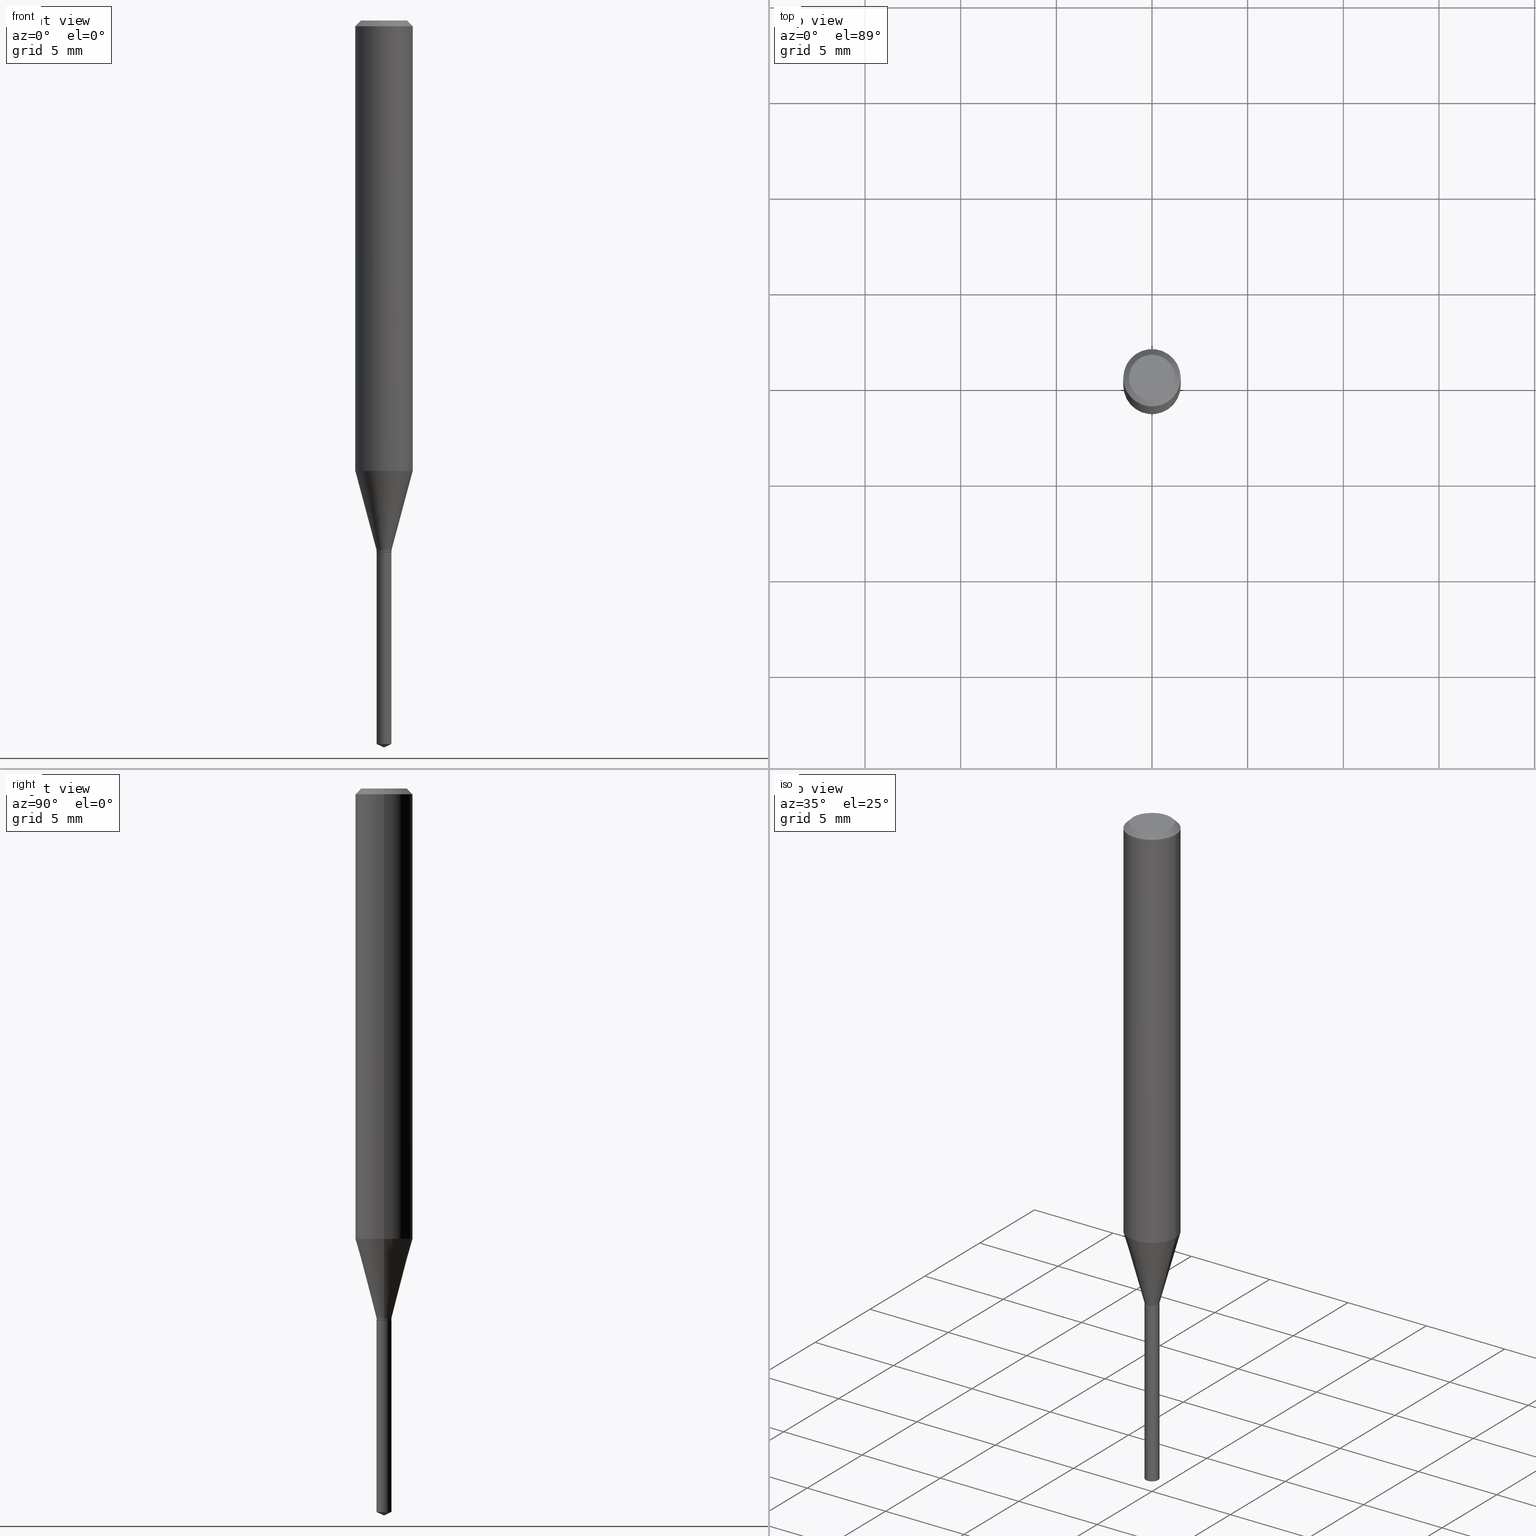
[diagram: canonical four-view strip — front | top / right | iso, engineering-drawing reading convention]
A machine part, canonical four-view strip (front | top / right | iso — engineering-drawing reading convention). The complete STEP part file that produces these views, byte-faithful:
ISO-10303-21;
HEADER;
FILE_DESCRIPTION (( 'STEP AP203' ),
    '1' );
FILE_NAME ('07798.STEP',
    '2024-04-24T03:16:05',
    ( '' ),
    ( '' ),
    'SwSTEP 2.0',
    'SolidWorks 2023',
    '' );
FILE_SCHEMA (( 'CONFIG_CONTROL_DESIGN' ));
ENDSEC;

DATA;
#1 = VERTEX_POINT ( 'NONE', #344 ) ;
#2 = VERTEX_POINT ( 'NONE', #79 ) ;
#3 = AXIS2_PLACEMENT_3D ( 'NONE', #420, #349, #424 ) ;
#4 = DIRECTION ( 'NONE',  ( -2.445470214571802116E-29, 3.491479321953280158E-15, 1.000000000000000000 ) ) ;
#5 = APPROVAL ( #217, 'UNSPECIFIED' ) ;
#6 = DIRECTION ( 'NONE',  ( 1.000000000000000000, -6.982962677686265922E-15, 0.000000000000000000 ) ) ;
#7 = CC_DESIGN_PERSON_AND_ORGANIZATION_ASSIGNMENT ( #370, #447, ( #406 ) ) ;
#8 = LINE ( 'NONE', #423, #436 ) ;
#9 = SECURITY_CLASSIFICATION ( '', '', #206 ) ;
#10 = CARTESIAN_POINT ( 'NONE',  ( -9.261968845786000133E-28, 1.322362114038720264E-13, 37.87397874015748300 ) ) ;
#11 = ADVANCED_FACE ( 'NONE', ( #116 ), #260, .T. ) ;
#12 = CARTESIAN_POINT ( 'NONE',  ( 0.01485000000000000035, -3.925123321127463241E-15, -1.094499999999999806 ) ) ;
#13 = DIRECTION ( 'NONE',  ( -2.445470214571802116E-29, 3.491479321953280158E-15, 1.000000000000000000 ) ) ;
#14 = DIRECTION ( 'NONE',  ( -2.445468806185136877E-29, 3.491481338843145188E-15, 1.000000000000000000 ) ) ;
#15 = ORIENTED_EDGE ( 'NONE', *, *, #364, .F. ) ;
#16 = CARTESIAN_POINT ( 'NONE',  ( 2.676565608369631794E-29, -3.821426325363822773E-15, -1.094499999999999806 ) ) ;
#17 = CLOSED_SHELL ( 'NONE', ( #21, #398, #314, #80, #92, #291, #109, #29, #42, #37, #411, #490 ) ) ;
#18 = VECTOR ( 'NONE', #258, 39.37007874015748143 ) ;
#19 = CARTESIAN_POINT ( 'NONE',  ( 2.665316451861180039E-29, -3.805365511205144152E-15, -1.089899999999999869 ) ) ;
#20 = ORIENTED_EDGE ( 'NONE', *, *, #182, .F. ) ;
#21 = ADVANCED_FACE ( 'NONE', ( #313 ), #320, .T. ) ;
#22 = DIRECTION ( 'NONE',  ( 1.000000000000000000, -6.982962677686266711E-15, 4.876176775795935793E-29 ) ) ;
#23 = PRODUCT_RELATED_PRODUCT_CATEGORY ( 'detail', '', ( #406 ) ) ;
#24 = DIRECTION ( 'NONE',  ( 1.000000000000000000, -6.982962677686263555E-15, 0.000000000000000000 ) ) ;
#25 = DIRECTION ( 'NONE',  ( 0.7071067811865218156, -2.468850131081987665E-15, 0.7071067811865732189 ) ) ;
#26 = VECTOR ( 'NONE', #471, 39.37007874015748854 ) ;
#27 = ORGANIZATION ( 'UNSPECIFIED', 'UNSPECIFIED', '' ) ;
#28 = VERTEX_POINT ( 'NONE', #452 ) ;
#29 = ADVANCED_FACE ( 'NONE', ( #46 ), #155, .T. ) ;
#30 = ORIENTED_EDGE ( 'NONE', *, *, #101, .F. ) ;
#31 = ORIENTED_EDGE ( 'NONE', *, *, #218, .T. ) ;
#32 = EDGE_CURVE ( 'NONE', #332, #467, #65, .T. ) ;
#33 = EDGE_LOOP ( 'NONE', ( #20, #304, #413, #401 ) ) ;
#34 = VECTOR ( 'NONE', #14, 39.37007874015748143 ) ;
#35 = PRODUCT_DEFINITION_FORMATION_WITH_SPECIFIED_SOURCE ( 'ANY', '', #406, .NOT_KNOWN. ) ;
#36 = VERTEX_POINT ( 'NONE', #77 ) ;
#37 = ADVANCED_FACE ( 'NONE', ( #269 ), #454, .F. ) ;
#38 = CARTESIAN_POINT ( 'NONE',  ( 2.665316451861180039E-29, -3.805365511205144152E-15, -1.089899999999999869 ) ) ;
#39 = CARTESIAN_POINT ( 'NONE',  ( 2.665316451861180039E-29, -3.805365511205144152E-15, -1.089899999999999869 ) ) ;
#40 = CIRCLE ( 'NONE', #106, 0.01535000000000000080 ) ;
#41 = CIRCLE ( 'NONE', #208, 0.05905000000000010935 ) ;
#42 = ADVANCED_FACE ( 'NONE', ( #381 ), #125, .T. ) ;
#43 = FACE_OUTER_BOUND ( 'NONE', #299, .T. ) ;
#44 = CARTESIAN_POINT ( 'NONE',  ( 2.675342873966538993E-29, -3.819680584694400481E-15, -1.093999999999999861 ) ) ;
#45 = EDGE_CURVE ( 'NONE', #334, #67, #134, .T. ) ;
#46 = FACE_OUTER_BOUND ( 'NONE', #169, .T. ) ;
#47 = AXIS2_PLACEMENT_3D ( 'NONE', #462, #228, #122 ) ;
#48 = CARTESIAN_POINT ( 'NONE',  ( 2.676565608369631794E-29, -3.821426325363822773E-15, -1.094499999999999806 ) ) ;
#49 = CARTESIAN_POINT ( 'NONE',  ( -0.01485000000000000035, -3.715910729103447684E-15, -1.094499999999999806 ) ) ;
#50 = CARTESIAN_POINT ( 'NONE',  ( -1.071884771024477540E-16, -0.01535000000000519803, -1.488942177447320825 ) ) ;
#51 = ORIENTED_EDGE ( 'NONE', *, *, #464, .T. ) ;
#52 = DIRECTION ( 'NONE',  ( 2.445470214571801836E-29, -3.491479321953280158E-15, -1.000000000000000000 ) ) ;
#53 = DIRECTION ( 'NONE',  ( 1.000000000000000000, -6.982962677686263555E-15, 0.000000000000000000 ) ) ;
#54 = PERSON_AND_ORGANIZATION_ROLE ( 'design_supplier' ) ;
#55 = DIRECTION ( 'NONE',  ( 1.000000000000000000, -6.982962677686263555E-15, 0.000000000000000000 ) ) ;
#56 = AXIS2_PLACEMENT_3D ( 'NONE', #38, #308, #196 ) ;
#57 = LOCAL_TIME ( 23, 16, 5.000000000000000000, #294 ) ;
#58 = DIRECTION ( 'NONE',  ( -2.445468806185136597E-29, 3.491481338843145583E-15, 1.000000000000000000 ) ) ;
#59 = CARTESIAN_POINT ( 'NONE',  ( -0.05904999999999999832, -1.219010538799330000E-15, -0.01181000000000007044 ) ) ;
#60 = DIRECTION ( 'NONE',  ( -2.445470214571802116E-29, 3.491479321953280158E-15, 1.000000000000000000 ) ) ;
#61 = UNCERTAINTY_MEASURE_WITH_UNIT (LENGTH_MEASURE( 1.000000000000000082E-05 ), #212, 'distance_accuracy_value', 'NONE');
#62 = DATE_TIME_ROLE ( 'creation_date' ) ;
#63 = EDGE_CURVE ( 'NONE', #36, #28, #176, .T. ) ;
#64 = COORDINATED_UNIVERSAL_TIME_OFFSET ( 5, 0, .BEHIND. ) ;
#65 = CIRCLE ( 'NONE', #486, 0.05904999999999999832 ) ;
#66 = AXIS2_PLACEMENT_3D ( 'NONE', #142, #403, #409 ) ;
#67 = VERTEX_POINT ( 'NONE', #162 ) ;
#68 = ORIENTED_EDGE ( 'NONE', *, *, #455, .T. ) ;
#69 = EDGE_CURVE ( 'NONE', #1, #256, #115, .T. ) ;
#70 = ORIENTED_EDGE ( 'NONE', *, *, #166, .F. ) ;
#71 = CALENDAR_DATE ( 2024, 23, 4 ) ;
#72 = ORIENTED_EDGE ( 'NONE', *, *, #257, .F. ) ;
#73 = AXIS2_PLACEMENT_3D ( 'NONE', #310, #99, #352 ) ;
#74 = APPROVAL_PERSON_ORGANIZATION ( #347, #110, #137 ) ;
#75 = EDGE_LOOP ( 'NONE', ( #251, #285, #68, #255 ) ) ;
#76 = CARTESIAN_POINT ( 'NONE',  ( 1.090683099392117581E-16, 0.01534999999999479663, -1.488942177447320825 ) ) ;
#77 = CARTESIAN_POINT ( 'NONE',  ( 0.01535000000000000080, -3.926869061796884744E-15, -1.093999999999999861 ) ) ;
#78 = VECTOR ( 'NONE', #277, 39.37007874015748143 ) ;
#79 = CARTESIAN_POINT ( 'NONE',  ( 0.01485000000000000035, -3.925123321127463241E-15, -1.094499999999999806 ) ) ;
#80 = ADVANCED_FACE ( 'NONE', ( #271 ), #342, .T. ) ;
#81 = ORIENTED_EDGE ( 'NONE', *, *, #449, .T. ) ;
#82 = CARTESIAN_POINT ( 'NONE',  ( -1.071884771024574298E-16, -0.01535000000000382239, -1.094499999999999806 ) ) ;
#83 = DIRECTION ( 'NONE',  ( -6.982962677686266711E-15, -1.000000000000000000, 3.520397390770412060E-15 ) ) ;
#84 = CC_DESIGN_DATE_AND_TIME_ASSIGNMENT ( #400, #62, ( #282 ) ) ;
#85 = AXIS2_PLACEMENT_3D ( 'NONE', #428, #232, #237 ) ;
#86 = AXIS2_PLACEMENT_3D ( 'NONE', #240, #58, #22 ) ;
#87 = CARTESIAN_POINT ( 'NONE',  ( -0.05905000000000005383, 4.195754854663395423E-16, -2.904631170795524694E-30 ) ) ;
#88 = CARTESIAN_POINT ( 'NONE',  ( -0.01535000000000000080, -3.696297201265968163E-15, -1.089899999999999869 ) ) ;
#89 = ORIENTED_EDGE ( 'NONE', *, *, #200, .T. ) ;
#90 = DIRECTION ( 'NONE',  ( -2.445468806185136597E-29, 3.491481338843145583E-15, 1.000000000000000000 ) ) ;
#91 = CYLINDRICAL_SURFACE ( 'NONE', #86, 0.05905000000000005383 ) ;
#92 = ADVANCED_FACE ( 'NONE', ( #43 ), #193, .T. ) ;
#93 =( NAMED_UNIT ( * ) SI_UNIT ( $, .STERADIAN. ) SOLID_ANGLE_UNIT ( ) );
#94 = DIRECTION ( 'NONE',  ( -2.445470214571802116E-29, 3.491479321953280158E-15, 1.000000000000000000 ) ) ;
#95 = APPROVAL_STATUS ( 'not_yet_approved' ) ;
#96 = CARTESIAN_POINT ( 'NONE',  ( 0.05905000000000010935, -3.648281600036976967E-15, -0.9268093797092398223 ) ) ;
#97 = CIRCLE ( 'NONE', #348, 0.05904999999999999832 ) ;
#98 = CONICAL_SURFACE ( 'NONE', #386, 0.05904999999999999832, 0.7853981633974452814 ) ;
#99 = DIRECTION ( 'NONE',  ( -2.445468806185136597E-29, 3.491481338843145583E-15, 1.000000000000000000 ) ) ;
#100 = COORDINATED_UNIVERSAL_TIME_OFFSET ( 5, 0, .BEHIND. ) ;
#101 = EDGE_CURVE ( 'NONE', #107, #256, #457, .T. ) ;
#102 = ORIENTED_EDGE ( 'NONE', *, *, #281, .T. ) ;
#103 = MECHANICAL_CONTEXT ( 'NONE', #470, 'mechanical' ) ;
#104 = DIRECTION ( 'NONE',  ( -6.982962677686265922E-15, -1.000000000000000000, 0.000000000000000000 ) ) ;
#105 = ORIENTED_EDGE ( 'NONE', *, *, #378, .T. ) ;
#106 = AXIS2_PLACEMENT_3D ( 'NONE', #385, #60, #202 ) ;
#107 = VERTEX_POINT ( 'NONE', #76 ) ;
#108 = EDGE_LOOP ( 'NONE', ( #301, #329 ) ) ;
#109 = ADVANCED_FACE ( 'NONE', ( #379 ), #198, .T. ) ;
#110 = APPROVAL ( #95, 'UNSPECIFIED' ) ;
#111 = ORIENTED_EDGE ( 'NONE', *, *, #118, .F. ) ;
#112 = ORIENTED_EDGE ( 'NONE', *, *, #311, .F. ) ;
#113 = AXIS2_PLACEMENT_3D ( 'NONE', #180, #139, #104 ) ;
#114 = EDGE_CURVE ( 'NONE', #136, #485, #8, .T. ) ;
#115 = LINE ( 'NONE', #377, #297 ) ;
#116 = FACE_OUTER_BOUND ( 'NONE', #335, .T. ) ;
#117 = DIRECTION ( 'NONE',  ( 1.000000000000000000, -6.982962677686265922E-15, 0.000000000000000000 ) ) ;
#118 = EDGE_CURVE ( 'NONE', #67, #334, #233, .T. ) ;
#119 = CIRCLE ( 'NONE', #144, 0.05905000000000010935 ) ;
#120 = CARTESIAN_POINT ( 'NONE',  ( 2.888098660104663766E-31, -4.123439461173779647E-17, -0.01181000000000007044 ) ) ;
#121 = DIRECTION ( 'NONE',  ( -1.000000000000000000, 6.982962677686266711E-15, 0.000000000000000000 ) ) ;
#122 = DIRECTION ( 'NONE',  ( 1.000000000000000000, -6.982962677686266711E-15, 4.876185090822587894E-29 ) ) ;
#123 = PLANE ( 'NONE',  #396 ) ;
#124 = FACE_OUTER_BOUND ( 'NONE', #226, .T. ) ;
#125 = CONICAL_SURFACE ( 'NONE', #3, 0.05904999999999999832, 0.7853981633974452814 ) ;
#126 = AXIS2_PLACEMENT_3D ( 'NONE', #397, #201, #388 ) ;
#127 = DIRECTION ( 'NONE',  ( -6.982962677686265922E-15, -1.000000000000000000, 0.000000000000000000 ) ) ;
#128 = EDGE_CURVE ( 'NONE', #485, #332, #244, .T. ) ;
#129 = DIRECTION ( 'NONE',  ( -6.982962677686265922E-15, -1.000000000000000000, 0.000000000000000000 ) ) ;
#130 = LENGTH_MEASURE_WITH_UNIT ( LENGTH_MEASURE( 0.02539999999999999897 ), #239 );
#131 = CARTESIAN_POINT ( 'NONE',  ( 2.675342873966538993E-29, -3.819680584694400481E-15, -1.093999999999999861 ) ) ;
#132 = PERSON_AND_ORGANIZATION ( #216, #27 ) ;
#133 = CARTESIAN_POINT ( 'NONE',  ( 0.05904999999999999832, -4.535783407291118600E-16, -0.01181000000000007044 ) ) ;
#134 = CIRCLE ( 'NONE', #47, 0.04724000000000000421 ) ;
#135 = CARTESIAN_POINT ( 'NONE',  ( 0.05905000000000005383, -4.123439461173744271E-16, 2.879382386107502672E-30 ) ) ;
#136 = VERTEX_POINT ( 'NONE', #475 ) ;
#137 = APPROVAL_ROLE ( '' ) ;
#138 = ORIENTED_EDGE ( 'NONE', *, *, #63, .F. ) ;
#139 = DIRECTION ( 'NONE',  ( -2.445470214571802116E-29, 3.491479321953280158E-15, 1.000000000000000000 ) ) ;
#140 = EDGE_LOOP ( 'NONE', ( #392, #321, #138, #296 ) ) ;
#141 = PERSON_AND_ORGANIZATION ( #216, #27 ) ;
#142 = CARTESIAN_POINT ( 'NONE',  ( -9.261968845786000133E-28, 1.322362114038720264E-13, 37.87397874015748300 ) ) ;
#143 = CIRCLE ( 'NONE', #305, 0.01535000000000000080 ) ;
#144 = AXIS2_PLACEMENT_3D ( 'NONE', #351, #203, #279 ) ;
#145 = CC_DESIGN_PERSON_AND_ORGANIZATION_ASSIGNMENT ( #141, #474, ( #282 ) ) ;
#146 = ORIENTED_EDGE ( 'NONE', *, *, #32, .T. ) ;
#147 = DIRECTION ( 'NONE',  ( 1.000000000000000000, 0.000000000000000000, 0.000000000000000000 ) ) ;
#148 = ORIENTED_EDGE ( 'NONE', *, *, #449, .F. ) ;
#149 = APPLICATION_CONTEXT ( 'configuration controlled 3d designs of mechanical parts and assemblies' ) ;
#150 = LINE ( 'NONE', #183, #336 ) ;
#151 = ORIENTED_EDGE ( 'NONE', *, *, #114, .F. ) ;
#152 = EDGE_CURVE ( 'NONE', #446, #2, #358, .T. ) ;
#153 = AXIS2_PLACEMENT_3D ( 'NONE', #459, #382, #154 ) ;
#154 = DIRECTION ( 'NONE',  ( 1.000000000000000000, -6.982962677686263555E-15, 0.000000000000000000 ) ) ;
#155 = CYLINDRICAL_SURFACE ( 'NONE', #170, 0.05905000000000005383 ) ;
#156 = EDGE_CURVE ( 'NONE', #2, #36, #357, .T. ) ;
#157 = DIRECTION ( 'NONE',  ( -2.445468806185136597E-29, 3.491481338843145583E-15, 1.000000000000000000 ) ) ;
#158 = DIRECTION ( 'NONE',  ( 0.2588190451025211281, 1.565188264969622954E-15, 0.9659258262890679791 ) ) ;
#159 = AXIS2_PLACEMENT_3D ( 'NONE', #227, #425, #265 ) ;
#160 = APPROVAL_PERSON_ORGANIZATION ( #215, #195, #177 ) ;
#161 = CALENDAR_DATE ( 2024, 23, 4 ) ;
#162 = CARTESIAN_POINT ( 'NONE',  ( -0.04724000000000000421, 3.504923541997677355E-16, -3.380025165670481712E-19 ) ) ;
#163 = CARTESIAN_POINT ( 'NONE',  ( 0.000000000000000000, 0.000000000000000000, 0.000000000000000000 ) ) ;
#164 = CARTESIAN_POINT ( 'NONE',  ( -0.01535000000000000080, -3.703454738010596723E-15, -1.089899999999999869 ) ) ;
#165 = ORIENTED_EDGE ( 'NONE', *, *, #32, .F. ) ;
#166 = EDGE_CURVE ( 'NONE', #67, #467, #173, .T. ) ;
#167 = LINE ( 'NONE', #87, #375 ) ;
#168 = DIRECTION ( 'NONE',  ( 1.000000000000000000, -6.982962677686266711E-15, 0.000000000000000000 ) ) ;
#169 = EDGE_LOOP ( 'NONE', ( #148, #188, #221, #339 ) ) ;
#170 = AXIS2_PLACEMENT_3D ( 'NONE', #197, #307, #453 ) ;
#171 = LINE ( 'NONE', #354, #374 ) ;
#172 = EDGE_LOOP ( 'NONE', ( #477, #480 ) ) ;
#173 = LINE ( 'NONE', #174, #192 ) ;
#174 = CARTESIAN_POINT ( 'NONE',  ( -0.05904999999999999832, 3.711095515056362547E-16, -0.01181000000000007044 ) ) ;
#175 = ORIENTED_EDGE ( 'NONE', *, *, #45, .F. ) ;
#176 = CIRCLE ( 'NONE', #445, 0.01535000000000000080 ) ;
#177 = APPROVAL_ROLE ( '' ) ;
#178 = CIRCLE ( 'NONE', #234, 0.01535000000000000080 ) ;
#179 = EDGE_LOOP ( 'NONE', ( #317, #89, #450, #151 ) ) ;
#180 = CARTESIAN_POINT ( 'NONE',  ( 2.676565608369631794E-29, -3.821426325363822773E-15, -1.094499999999999806 ) ) ;
#181 = ORIENTED_EDGE ( 'NONE', *, *, #257, .T. ) ;
#182 = EDGE_CURVE ( 'NONE', #446, #28, #399, .T. ) ;
#183 = CARTESIAN_POINT ( 'NONE',  ( 0.05904999999999999832, -4.463468013801466955E-16, -0.01181000000000007044 ) ) ;
#184 = EDGE_LOOP ( 'NONE', ( #225, #181, #262, #441 ) ) ;
#185 = CYLINDRICAL_SURFACE ( 'NONE', #113, 0.01535000000000000080 ) ;
#186 = AXIS2_PLACEMENT_3D ( 'NONE', #264, #267, #194 ) ;
#187 = APPROVAL_PERSON_ORGANIZATION ( #402, #5, #220 ) ;
#188 = ORIENTED_EDGE ( 'NONE', *, *, #427, .T. ) ;
#189 = FACE_OUTER_BOUND ( 'NONE', #75, .T. ) ;
#190 = VERTEX_POINT ( 'NONE', #199 ) ;
#191 = DIRECTION ( 'NONE',  ( -2.445468806185136597E-29, 3.491481338843145583E-15, 1.000000000000000000 ) ) ;
#192 = VECTOR ( 'NONE', #391, 39.37007874015748143 ) ;
#193 = CYLINDRICAL_SURFACE ( 'NONE', #186, 0.01535000000000000080 ) ;
#194 = DIRECTION ( 'NONE',  ( 1.000000000000000000, -6.982962677686265922E-15, 4.876176775795935793E-29 ) ) ;
#195 = APPROVAL ( #365, 'UNSPECIFIED' ) ;
#196 = DIRECTION ( 'NONE',  ( 1.000000000000000000, -6.982962677686265922E-15, 0.000000000000000000 ) ) ;
#197 = CARTESIAN_POINT ( 'NONE',  ( 0.000000000000000000, 0.000000000000000000, 0.000000000000000000 ) ) ;
#198 = CONICAL_SURFACE ( 'NONE', #476, 0.01535000000000000080, 0.2617993877991498519 ) ;
#199 = CARTESIAN_POINT ( 'NONE',  ( -1.071884771024574298E-16, -0.01535000000000382239, -1.094499999999999806 ) ) ;
#200 = EDGE_CURVE ( 'NONE', #205, #248, #435, .T. ) ;
#201 = DIRECTION ( 'NONE',  ( -2.438088387897960049E-29, 3.491481338843145188E-15, 1.000000000000000000 ) ) ;
#202 = DIRECTION ( 'NONE',  ( -6.982962677686265922E-15, -1.000000000000000000, 0.000000000000000000 ) ) ;
#203 = DIRECTION ( 'NONE',  ( -2.445468806185136597E-29, 3.491481338843145583E-15, 1.000000000000000000 ) ) ;
#204 = DIRECTION ( 'NONE',  ( -2.445468806185136597E-29, 3.491481338843145583E-15, 1.000000000000000000 ) ) ;
#205 = VERTEX_POINT ( 'NONE', #164 ) ;
#206 = SECURITY_CLASSIFICATION_LEVEL ( 'unclassified' ) ;
#207 = CIRCLE ( 'NONE', #85, 0.01535000000000000080 ) ;
#208 = AXIS2_PLACEMENT_3D ( 'NONE', #295, #415, #254 ) ;
#209 = CARTESIAN_POINT ( 'NONE',  ( 2.676565608369631794E-29, -3.821426325363822773E-15, -1.094499999999999806 ) ) ;
#210 = ORIENTED_EDGE ( 'NONE', *, *, #128, .F. ) ;
#211 = DATE_TIME_ROLE ( 'classification_date' ) ;
#212 =( CONVERSION_BASED_UNIT ( 'INCH', #130 ) LENGTH_UNIT ( ) NAMED_UNIT ( #292 ) );
#213 = CARTESIAN_POINT ( 'NONE',  ( 3.658668015054778287E-29, -5.223602213574301462E-15, -1.496099999999999985 ) ) ;
#214 = EDGE_CURVE ( 'NONE', #467, #332, #97, .T. ) ;
#215 = PERSON_AND_ORGANIZATION ( #216, #27 ) ;
#216 = PERSON ( 'UNSPECIFIED', 'UNSPECIFIED', 'UNSPECIFIED', ('UNSPECIFIED'), ('UNSPECIFIED'), ('UNSPECIFIED') ) ;
#217 = APPROVAL_STATUS ( 'not_yet_approved' ) ;
#218 = EDGE_CURVE ( 'NONE', #28, #36, #143, .T. ) ;
#219 = EDGE_LOOP ( 'NONE', ( #444, #371, #404 ) ) ;
#220 = APPROVAL_ROLE ( '' ) ;
#221 = ORIENTED_EDGE ( 'NONE', *, *, #128, .T. ) ;
#222 = AXIS2_PLACEMENT_3D ( 'NONE', #19, #328, #278 ) ;
#223 = EDGE_CURVE ( 'NONE', #256, #107, #40, .T. ) ;
#224 = CC_DESIGN_APPROVAL ( #195, ( #35 ) ) ;
#225 = ORIENTED_EDGE ( 'NONE', *, *, #200, .F. ) ;
#226 = EDGE_LOOP ( 'NONE', ( #105, #81, #165, #210 ) ) ;
#227 = CARTESIAN_POINT ( 'NONE',  ( 4.132873053354867254E-48, -5.900647395337818946E-34, -1.690012582823346072E-19 ) ) ;
#228 = DIRECTION ( 'NONE',  ( -2.445468806185136597E-29, 3.491481338843145583E-15, 1.000000000000000000 ) ) ;
#229 = DIRECTION ( 'NONE',  ( 1.000000000000000000, -6.982962677686266711E-15, 0.000000000000000000 ) ) ;
#230 = ORIENTED_EDGE ( 'NONE', *, *, #455, .F. ) ;
#231 = PERSON_AND_ORGANIZATION_ROLE ( 'classification_officer' ) ;
#232 = DIRECTION ( 'NONE',  ( -2.445468806185136597E-29, 3.491481338843145583E-15, 1.000000000000000000 ) ) ;
#233 = CIRCLE ( 'NONE', #73, 0.04724000000000000421 ) ;
#234 = AXIS2_PLACEMENT_3D ( 'NONE', #303, #247, #488 ) ;
#235 = DESIGN_CONTEXT ( 'detailed design', #149, 'design' ) ;
#236 = DIRECTION ( 'NONE',  ( 2.445468806185136597E-29, -3.491481338843145583E-15, -1.000000000000000000 ) ) ;
#237 = DIRECTION ( 'NONE',  ( 1.000000000000000000, -6.982962677686265922E-15, 0.000000000000000000 ) ) ;
#238 = ORIENTED_EDGE ( 'NONE', *, *, #281, .F. ) ;
#239 =( LENGTH_UNIT ( ) NAMED_UNIT ( * ) SI_UNIT ( $, .METRE. ) );
#240 = CARTESIAN_POINT ( 'NONE',  ( 0.000000000000000000, 0.000000000000000000, 0.000000000000000000 ) ) ;
#241 = FACE_OUTER_BOUND ( 'NONE', #172, .T. ) ;
#242 = CARTESIAN_POINT ( 'NONE',  ( 0.000000000000000000, 0.000000000000000000, 0.000000000000000000 ) ) ;
#243 = CARTESIAN_POINT ( 'NONE',  ( -0.01485000000000000035, -3.713261501929336483E-15, -1.094499999999999806 ) ) ;
#244 = LINE ( 'NONE', #135, #34 ) ;
#245 = PERSON_AND_ORGANIZATION ( #216, #27 ) ;
#246 = CALENDAR_DATE ( 2024, 23, 4 ) ;
#247 = DIRECTION ( 'NONE',  ( -2.445470214571802116E-29, 3.491479321953280158E-15, 1.000000000000000000 ) ) ;
#248 = VERTEX_POINT ( 'NONE', #473 ) ;
#249 = FACE_OUTER_BOUND ( 'NONE', #219, .T. ) ;
#250 = ADVANCED_FACE ( 'NONE', ( #469 ), #440, .T. ) ;
#251 = ORIENTED_EDGE ( 'NONE', *, *, #373, .F. ) ;
#252 = CIRCLE ( 'NONE', #222, 0.01535000000000000080 ) ;
#253 = CIRCLE ( 'NONE', #422, 0.01535000000000000080 ) ;
#254 = DIRECTION ( 'NONE',  ( 1.000000000000000000, -6.982962677686267499E-15, 0.000000000000000000 ) ) ;
#255 = ORIENTED_EDGE ( 'NONE', *, *, #443, .F. ) ;
#256 = VERTEX_POINT ( 'NONE', #50 ) ;
#257 = EDGE_CURVE ( 'NONE', #205, #136, #207, .T. ) ;
#258 = DIRECTION ( 'NONE',  ( -2.445470214571802396E-29, 3.491479321953280158E-15, 1.000000000000000000 ) ) ;
#259 = VERTEX_POINT ( 'NONE', #316 ) ;
#260 = CONICAL_SURFACE ( 'NONE', #421, 84.42940631927534412, 1.134464013796320447 ) ;
#261 = CC_DESIGN_PERSON_AND_ORGANIZATION_ASSIGNMENT ( #132, #231, ( #9 ) ) ;
#262 = ORIENTED_EDGE ( 'NONE', *, *, #114, .T. ) ;
#263 = FACE_OUTER_BOUND ( 'NONE', #410, .T. ) ;
#264 = CARTESIAN_POINT ( 'NONE',  ( 0.000000000000000000, 0.000000000000000000, 0.000000000000000000 ) ) ;
#265 = DIRECTION ( 'NONE',  ( -1.000000000000000000, 6.982962677686265922E-15, -4.876176775795935793E-29 ) ) ;
#266 = CLOSED_SHELL ( 'NONE', ( #250, #372, #11, #355, #433 ) ) ;
#267 = DIRECTION ( 'NONE',  ( -2.445468806185136597E-29, 3.491481338843145583E-15, 1.000000000000000000 ) ) ;
#268 = AXIS2_PLACEMENT_3D ( 'NONE', #460, #90, #55 ) ;
#269 = FACE_OUTER_BOUND ( 'NONE', #489, .T. ) ;
#270 = EDGE_CURVE ( 'NONE', #136, #205, #252, .T. ) ;
#271 = FACE_OUTER_BOUND ( 'NONE', #179, .T. ) ;
#272 = CARTESIAN_POINT ( 'NONE',  ( 2.888098660104663766E-31, -4.123439461173779647E-17, -0.01181000000000007044 ) ) ;
#273 = FACE_OUTER_BOUND ( 'NONE', #442, .T. ) ;
#274 = AXIS2_PLACEMENT_3D ( 'NONE', #280, #289, #53 ) ;
#275 = EDGE_LOOP ( 'NONE', ( #448, #395, #15, #230 ) ) ;
#276 = AXIS2_PLACEMENT_3D ( 'NONE', #242, #431, #466 ) ;
#277 = DIRECTION ( 'NONE',  ( -2.445468806185136877E-29, 3.491481338843145188E-15, 1.000000000000000000 ) ) ;
#278 = DIRECTION ( 'NONE',  ( 1.000000000000000000, -6.982962677686265922E-15, 0.000000000000000000 ) ) ;
#279 = DIRECTION ( 'NONE',  ( 1.000000000000000000, -6.982962677686267499E-15, 0.000000000000000000 ) ) ;
#280 = CARTESIAN_POINT ( 'NONE',  ( 2.676565608369631794E-29, -3.821426325363822773E-15, -1.094499999999999806 ) ) ;
#281 = EDGE_CURVE ( 'NONE', #36, #136, #171, .T. ) ;
#282 = PRODUCT_DEFINITION ( 'UNKNOWN', '', #35, #235 ) ;
#283 = APPLICATION_PROTOCOL_DEFINITION ( 'international standard', 'config_control_design', 1994, #470 ) ;
#284 = CARTESIAN_POINT ( 'NONE',  ( 0.04724000000000000421, -3.852183633974369345E-16, -3.380025165621689721E-19 ) ) ;
#285 = ORIENTED_EDGE ( 'NONE', *, *, #101, .T. ) ;
#286 = APPROVAL_DATE_TIME ( #330, #195 ) ;
#287 = VECTOR ( 'NONE', #363, 39.37007874015748143 ) ;
#288 = LOCAL_TIME ( 23, 16, 5.000000000000000000, #438 ) ;
#289 = DIRECTION ( 'NONE',  ( -2.445468806185136597E-29, 3.491481338843145583E-15, 1.000000000000000000 ) ) ;
#290 = ORIENTED_EDGE ( 'NONE', *, *, #63, .T. ) ;
#291 = ADVANCED_FACE ( 'NONE', ( #273 ), #432, .T. ) ;
#292 = DIMENSIONAL_EXPONENTS ( 1.000000000000000000, 0.000000000000000000, 0.000000000000000000, 0.000000000000000000, 0.000000000000000000, 0.000000000000000000, 0.000000000000000000 ) ;
#293 = CALENDAR_DATE ( 2024, 23, 4 ) ;
#294 = COORDINATED_UNIVERSAL_TIME_OFFSET ( 5, 0, .BEHIND. ) ;
#295 = CARTESIAN_POINT ( 'NONE',  ( 2.266483427358741617E-29, -3.235937653919602046E-15, -0.9268093797092398223 ) ) ;
#296 = ORIENTED_EDGE ( 'NONE', *, *, #156, .F. ) ;
#297 = VECTOR ( 'NONE', #380, 39.37007874015748854 ) ;
#298 = VECTOR ( 'NONE', #315, 39.37007874015748143 ) ;
#299 = EDGE_LOOP ( 'NONE', ( #290, #51, #416, #238 ) ) ;
#300 = CARTESIAN_POINT ( 'NONE',  ( 1.090683099392021315E-16, 0.01534999999999617747, -1.094499999999999806 ) ) ;
#301 = ORIENTED_EDGE ( 'NONE', *, *, #417, .F. ) ;
#302 = CC_DESIGN_PERSON_AND_ORGANIZATION_ASSIGNMENT ( #324, #333, ( #35 ) ) ;
#303 = CARTESIAN_POINT ( 'NONE',  ( 2.676565608369631794E-29, -3.821426325363822773E-15, -1.094499999999999806 ) ) ;
#304 = ORIENTED_EDGE ( 'NONE', *, *, #152, .T. ) ;
#305 = AXIS2_PLACEMENT_3D ( 'NONE', #131, #319, #360 ) ;
#306 = CONICAL_SURFACE ( 'NONE', #268, 0.01485000000000000035, 0.7853981633974119747 ) ;
#307 = DIRECTION ( 'NONE',  ( -2.445468806185136597E-29, 3.491481338843145583E-15, 1.000000000000000000 ) ) ;
#308 = DIRECTION ( 'NONE',  ( -2.445468806185136597E-29, 3.491481338843145583E-15, 1.000000000000000000 ) ) ;
#309 = VECTOR ( 'NONE', #389, 39.37007874015748143 ) ;
#310 = CARTESIAN_POINT ( 'NONE',  ( 8.265746106709734507E-48, -1.180129479067563789E-33, -3.380025165646692144E-19 ) ) ;
#311 = EDGE_CURVE ( 'NONE', #1, #107, #394, .T. ) ;
#312 = CARTESIAN_POINT ( 'NONE',  ( -0.01535000000000000080, 1.090683099391753842E-16, -7.550565363541280664E-31 ) ) ;
#313 = FACE_OUTER_BOUND ( 'NONE', #140, .T. ) ;
#314 = ADVANCED_FACE ( 'NONE', ( #124 ), #91, .T. ) ;
#315 = DIRECTION ( 'NONE',  ( -2.445470214571802396E-29, 3.491479321953280158E-15, 1.000000000000000000 ) ) ;
#316 = CARTESIAN_POINT ( 'NONE',  ( 1.090683099392118567E-16, 0.01534999999999617920, -1.094499999999999806 ) ) ;
#317 = ORIENTED_EDGE ( 'NONE', *, *, #270, .T. ) ;
#318 = LINE ( 'NONE', #82, #298 ) ;
#319 = DIRECTION ( 'NONE',  ( -2.445468806185136597E-29, 3.491481338843145583E-15, 1.000000000000000000 ) ) ;
#320 = CONICAL_SURFACE ( 'NONE', #153, 0.01485000000000000035, 0.7853981633974119747 ) ;
#321 = ORIENTED_EDGE ( 'NONE', *, *, #182, .T. ) ;
#322 = CC_DESIGN_APPROVAL ( #110, ( #9 ) ) ;
#323 = DIRECTION ( 'NONE',  ( -2.445468806185136877E-29, 3.491481338843145188E-15, 1.000000000000000000 ) ) ;
#324 = PERSON_AND_ORGANIZATION ( #216, #27 ) ;
#325 = FACE_OUTER_BOUND ( 'NONE', #33, .T. ) ;
#326 = CARTESIAN_POINT ( 'NONE',  ( 2.888098660104663766E-31, -4.123439461173779647E-17, -0.01181000000000007044 ) ) ;
#327 = APPROVAL_DATE_TIME ( #408, #5 ) ;
#328 = DIRECTION ( 'NONE',  ( -2.445468806185136597E-29, 3.491481338843145583E-15, 1.000000000000000000 ) ) ;
#329 = ORIENTED_EDGE ( 'NONE', *, *, #152, .F. ) ;
#330 = DATE_AND_TIME ( #367, #439 ) ;
#331 = CIRCLE ( 'NONE', #487, 0.01485000000000000035 ) ;
#332 = VERTEX_POINT ( 'NONE', #133 ) ;
#333 = PERSON_AND_ORGANIZATION_ROLE ( 'creator' ) ;
#334 = VERTEX_POINT ( 'NONE', #284 ) ;
#335 = EDGE_LOOP ( 'NONE', ( #112, #390, #30 ) ) ;
#336 = VECTOR ( 'NONE', #366, 39.37007874015748143 ) ;
#337 = CC_DESIGN_PERSON_AND_ORGANIZATION_ASSIGNMENT ( #245, #54, ( #35 ) ) ;
#338 = ORIENTED_EDGE ( 'NONE', *, *, #166, .T. ) ;
#339 = ORIENTED_EDGE ( 'NONE', *, *, #214, .F. ) ;
#340 = CARTESIAN_POINT ( 'NONE',  ( 3.641162204687900496E-29, -5.198613031627369292E-15, -1.488942177447320825 ) ) ;
#341 = EDGE_CURVE ( 'NONE', #334, #332, #150, .T. ) ;
#342 = CONICAL_SURFACE ( 'NONE', #56, 0.01535000000000000080, 0.2617993877991498519 ) ;
#343 =( GEOMETRIC_REPRESENTATION_CONTEXT ( 3 ) GLOBAL_UNCERTAINTY_ASSIGNED_CONTEXT ( ( #61 ) ) GLOBAL_UNIT_ASSIGNED_CONTEXT ( ( #212, #356, #93 ) ) REPRESENTATION_CONTEXT ( 'NONE', 'WORKASPACE' ) );
#344 = CARTESIAN_POINT ( 'NONE',  ( 3.658667988020872822E-29, -5.223602213574301462E-15, -1.496099999999999985 ) ) ;
#345 = DIRECTION ( 'NONE',  ( -6.982962677686265922E-15, -1.000000000000000000, 0.000000000000000000 ) ) ;
#346 = DIRECTION ( 'NONE',  ( -2.445468806185136597E-29, 3.491481338843145583E-15, 1.000000000000000000 ) ) ;
#347 = PERSON_AND_ORGANIZATION ( #216, #27 ) ;
#348 = AXIS2_PLACEMENT_3D ( 'NONE', #326, #204, #168 ) ;
#349 = DIRECTION ( 'NONE',  ( 2.445468806185136597E-29, -3.491481338843145583E-15, -1.000000000000000000 ) ) ;
#350 = AXIS2_PLACEMENT_3D ( 'NONE', #163, #465, #147 ) ;
#351 = CARTESIAN_POINT ( 'NONE',  ( 2.266483427358741617E-29, -3.235937653919602046E-15, -0.9268093797092398223 ) ) ;
#352 = DIRECTION ( 'NONE',  ( 1.000000000000000000, -6.982962677686266711E-15, 4.876185090822587894E-29 ) ) ;
#353 = DIRECTION ( 'NONE',  ( 6.982962677686265922E-15, 1.000000000000000000, -3.491479321953280158E-15 ) ) ;
#354 = CARTESIAN_POINT ( 'NONE',  ( 0.01535000000000000080, -1.071884771024841895E-16, 7.484931350846761435E-31 ) ) ;
#355 = ADVANCED_FACE ( 'NONE', ( #189 ), #185, .T. ) ;
#356 =( NAMED_UNIT ( * ) PLANE_ANGLE_UNIT ( ) SI_UNIT ( $, .RADIAN. ) );
#357 = LINE ( 'NONE', #12, #405 ) ;
#358 = CIRCLE ( 'NONE', #274, 0.01485000000000000035 ) ;
#359 = CONICAL_SURFACE ( 'NONE', #66, 84.42940631927534412, 1.134464013796320447 ) ;
#360 = DIRECTION ( 'NONE',  ( 1.000000000000000000, -6.982962677686265922E-15, 0.000000000000000000 ) ) ;
#361 = ORIENTED_EDGE ( 'NONE', *, *, #341, .F. ) ;
#362 = FACE_OUTER_BOUND ( 'NONE', #108, .T. ) ;
#363 = DIRECTION ( 'NONE',  ( 6.439704144417042975E-15, 0.9063077870366541555, 0.4226182617406906150 ) ) ;
#364 = EDGE_CURVE ( 'NONE', #190, #259, #178, .T. ) ;
#365 = APPROVAL_STATUS ( 'not_yet_approved' ) ;
#366 = DIRECTION ( 'NONE',  ( 0.7071067811865453523, -7.319954787623248157E-15, -0.7071067811865496822 ) ) ;
#367 = CALENDAR_DATE ( 2024, 23, 4 ) ;
#368 = CC_DESIGN_SECURITY_CLASSIFICATION ( #9, ( #35 ) ) ;
#369 = ORIENTED_EDGE ( 'NONE', *, *, #341, .T. ) ;
#370 = PERSON_AND_ORGANIZATION ( #216, #27 ) ;
#371 = ORIENTED_EDGE ( 'NONE', *, *, #311, .T. ) ;
#372 = ADVANCED_FACE ( 'NONE', ( #249 ), #359, .T. ) ;
#373 = EDGE_CURVE ( 'NONE', #107, #259, #484, .T. ) ;
#374 = VECTOR ( 'NONE', #323, 39.37007874015748143 ) ;
#375 = VECTOR ( 'NONE', #393, 39.37007874015748143 ) ;
#376 = ORIENTED_EDGE ( 'NONE', *, *, #214, .T. ) ;
#377 = CARTESIAN_POINT ( 'NONE',  ( 3.658664905062460986E-29, -5.223606628546217219E-15, -1.496099999999999985 ) ) ;
#378 = EDGE_CURVE ( 'NONE', #485, #248, #41, .T. ) ;
#379 = FACE_OUTER_BOUND ( 'NONE', #184, .T. ) ;
#380 = DIRECTION ( 'NONE',  ( -6.328713451373386733E-15, -0.9063077870366510469, 0.4226182617406968323 ) ) ;
#381 = FACE_OUTER_BOUND ( 'NONE', #429, .T. ) ;
#382 = DIRECTION ( 'NONE',  ( -2.445468806185136597E-29, 3.491481338843145583E-15, 1.000000000000000000 ) ) ;
#383 = DATE_AND_TIME ( #161, #407 ) ;
#384 = LINE ( 'NONE', #312, #78 ) ;
#385 = CARTESIAN_POINT ( 'NONE',  ( 3.641162204687900496E-29, -5.198613031627369292E-15, -1.488942177447320825 ) ) ;
#386 = AXIS2_PLACEMENT_3D ( 'NONE', #272, #236, #121 ) ;
#387 = ADVANCED_BREP_SHAPE_REPRESENTATION ( '07798', ( #461, #463, #350 ), #343 ) ;
#388 = DIRECTION ( 'NONE',  ( 1.000000000000000000, -6.982962677686265922E-15, 4.876176775795935793E-29 ) ) ;
#389 = DIRECTION ( 'NONE',  ( -0.7071067811865218156, 7.493145998870261075E-15, 0.7071067811865732189 ) ) ;
#390 = ORIENTED_EDGE ( 'NONE', *, *, #69, .T. ) ;
#391 = DIRECTION ( 'NONE',  ( -0.7071067811865453523, 2.468850131082234184E-15, -0.7071067811865496822 ) ) ;
#392 = ORIENTED_EDGE ( 'NONE', *, *, #417, .T. ) ;
#393 = DIRECTION ( 'NONE',  ( -2.445468806185136877E-29, 3.491481338843145188E-15, 1.000000000000000000 ) ) ;
#394 = LINE ( 'NONE', #213, #287 ) ;
#395 = ORIENTED_EDGE ( 'NONE', *, *, #373, .T. ) ;
#396 = AXIS2_PLACEMENT_3D ( 'NONE', #48, #52, #353 ) ;
#397 = CARTESIAN_POINT ( 'NONE',  ( 2.676565608369631794E-29, -3.821426325363822773E-15, -1.094499999999999806 ) ) ;
#398 = ADVANCED_FACE ( 'NONE', ( #263 ), #98, .T. ) ;
#399 = LINE ( 'NONE', #49, #309 ) ;
#400 = DATE_AND_TIME ( #246, #479 ) ;
#401 = ORIENTED_EDGE ( 'NONE', *, *, #218, .F. ) ;
#402 = PERSON_AND_ORGANIZATION ( #216, #27 ) ;
#403 = DIRECTION ( 'NONE',  ( -2.445470214571802116E-29, 3.491479321953280158E-15, 1.000000000000000000 ) ) ;
#404 = ORIENTED_EDGE ( 'NONE', *, *, #223, .F. ) ;
#405 = VECTOR ( 'NONE', #25, 39.37007874015748143 ) ;
#406 = PRODUCT ( '07798', '07798', '', ( #103 ) ) ;
#407 = LOCAL_TIME ( 23, 16, 5.000000000000000000, #64 ) ;
#408 = DATE_AND_TIME ( #71, #57 ) ;
#409 = DIRECTION ( 'NONE',  ( -6.982962677686266711E-15, -1.000000000000000000, 3.520397390770412060E-15 ) ) ;
#410 = EDGE_LOOP ( 'NONE', ( #175, #369, #146, #70 ) ) ;
#411 = ADVANCED_FACE ( 'NONE', ( #362 ), #430, .F. ) ;
#412 = CC_DESIGN_DATE_AND_TIME_ASSIGNMENT ( #478, #211, ( #9 ) ) ;
#413 = ORIENTED_EDGE ( 'NONE', *, *, #156, .T. ) ;
#414 = APPLICATION_PROTOCOL_DEFINITION ( 'international standard', 'config_control_design', 1994, #149 ) ;
#415 = DIRECTION ( 'NONE',  ( -2.445468806185136597E-29, 3.491481338843145583E-15, 1.000000000000000000 ) ) ;
#416 = ORIENTED_EDGE ( 'NONE', *, *, #270, .F. ) ;
#417 = EDGE_CURVE ( 'NONE', #2, #446, #331, .T. ) ;
#418 = ORIENTED_EDGE ( 'NONE', *, *, #45, .T. ) ;
#419 = DIRECTION ( 'NONE',  ( -2.445470214571802116E-29, 3.491479321953280158E-15, 1.000000000000000000 ) ) ;
#420 = CARTESIAN_POINT ( 'NONE',  ( 2.888098660104663766E-31, -4.123439461173779647E-17, -0.01181000000000007044 ) ) ;
#421 = AXIS2_PLACEMENT_3D ( 'NONE', #10, #4, #83 ) ;
#422 = AXIS2_PLACEMENT_3D ( 'NONE', #16, #13, #127 ) ;
#423 = CARTESIAN_POINT ( 'NONE',  ( 0.01535000000000000080, -3.912553988307628415E-15, -1.089899999999999869 ) ) ;
#424 = DIRECTION ( 'NONE',  ( -1.000000000000000000, 6.982962677686266711E-15, 0.000000000000000000 ) ) ;
#425 = DIRECTION ( 'NONE',  ( 2.438088387897960049E-29, -3.491481338843145188E-15, -1.000000000000000000 ) ) ;
#426 = DIRECTION ( 'NONE',  ( -2.445468806185136597E-29, 3.491481338843145583E-15, 1.000000000000000000 ) ) ;
#427 = EDGE_CURVE ( 'NONE', #248, #485, #119, .T. ) ;
#428 = CARTESIAN_POINT ( 'NONE',  ( 2.665316451861180039E-29, -3.805365511205144152E-15, -1.089899999999999869 ) ) ;
#429 = EDGE_LOOP ( 'NONE', ( #361, #111, #338, #376 ) ) ;
#430 = PLANE ( 'NONE',  #126 ) ;
#431 = DIRECTION ( 'NONE',  ( -2.445468806185136597E-29, 3.491481338843145583E-15, 1.000000000000000000 ) ) ;
#432 = CYLINDRICAL_SURFACE ( 'NONE', #276, 0.01535000000000000080 ) ;
#433 = ADVANCED_FACE ( 'NONE', ( #241 ), #123, .F. ) ;
#434 = CARTESIAN_POINT ( 'NONE',  ( 2.676565608369631794E-29, -3.821426325363822773E-15, -1.094499999999999806 ) ) ;
#435 = LINE ( 'NONE', #88, #26 ) ;
#436 = VECTOR ( 'NONE', #158, 39.37007874015748854 ) ;
#437 = ORIENTED_EDGE ( 'NONE', *, *, #118, .T. ) ;
#438 = COORDINATED_UNIVERSAL_TIME_OFFSET ( 5, 0, .BEHIND. ) ;
#439 = LOCAL_TIME ( 23, 16, 5.000000000000000000, #456 ) ;
#440 = CYLINDRICAL_SURFACE ( 'NONE', #468, 0.01535000000000000080 ) ;
#441 = ORIENTED_EDGE ( 'NONE', *, *, #427, .F. ) ;
#442 = EDGE_LOOP ( 'NONE', ( #483, #31, #102, #72 ) ) ;
#443 = EDGE_CURVE ( 'NONE', #259, #190, #253, .T. ) ;
#444 = ORIENTED_EDGE ( 'NONE', *, *, #69, .F. ) ;
#445 = AXIS2_PLACEMENT_3D ( 'NONE', #44, #191, #117 ) ;
#446 = VERTEX_POINT ( 'NONE', #243 ) ;
#447 = PERSON_AND_ORGANIZATION_ROLE ( 'design_owner' ) ;
#448 = ORIENTED_EDGE ( 'NONE', *, *, #223, .T. ) ;
#449 = EDGE_CURVE ( 'NONE', #248, #467, #167, .T. ) ;
#450 = ORIENTED_EDGE ( 'NONE', *, *, #378, .F. ) ;
#451 = AXIS2_PLACEMENT_3D ( 'NONE', #340, #419, #345 ) ;
#452 = CARTESIAN_POINT ( 'NONE',  ( -0.01535000000000000080, -3.703454738010596723E-15, -1.093999999999999861 ) ) ;
#453 = DIRECTION ( 'NONE',  ( 1.000000000000000000, -6.982962677686266711E-15, 4.876176775795935793E-29 ) ) ;
#454 = PLANE ( 'NONE',  #159 ) ;
#455 = EDGE_CURVE ( 'NONE', #256, #190, #318, .T. ) ;
#456 = COORDINATED_UNIVERSAL_TIME_OFFSET ( 5, 0, .BEHIND. ) ;
#457 = CIRCLE ( 'NONE', #451, 0.01535000000000000080 ) ;
#458 = CC_DESIGN_APPROVAL ( #5, ( #282 ) ) ;
#459 = CARTESIAN_POINT ( 'NONE',  ( 2.676565608369631794E-29, -3.821426325363822773E-15, -1.094499999999999806 ) ) ;
#460 = CARTESIAN_POINT ( 'NONE',  ( 2.676565608369631794E-29, -3.821426325363822773E-15, -1.094499999999999806 ) ) ;
#461 = MANIFOLD_SOLID_BREP ( 'Body-Move/Copy2[1]', #266 ) ;
#462 = CARTESIAN_POINT ( 'NONE',  ( 8.265746106709734507E-48, -1.180129479067563789E-33, -3.380025165646692144E-19 ) ) ;
#463 = MANIFOLD_SOLID_BREP ( 'Body-Move/Copy2[2]', #17 ) ;
#464 = EDGE_CURVE ( 'NONE', #28, #205, #384, .T. ) ;
#465 = DIRECTION ( 'NONE',  ( 0.000000000000000000, 0.000000000000000000, 1.000000000000000000 ) ) ;
#466 = DIRECTION ( 'NONE',  ( 1.000000000000000000, -6.982962677686265922E-15, 4.876176775795935793E-29 ) ) ;
#467 = VERTEX_POINT ( 'NONE', #59 ) ;
#468 = AXIS2_PLACEMENT_3D ( 'NONE', #209, #94, #129 ) ;
#469 = FACE_OUTER_BOUND ( 'NONE', #275, .T. ) ;
#470 = APPLICATION_CONTEXT ( 'configuration controlled 3d designs of mechanical parts and assemblies' ) ;
#471 = DIRECTION ( 'NONE',  ( -0.2588190451025211281, 5.211531920934547886E-15, 0.9659258262890679791 ) ) ;
#472 = SHAPE_DEFINITION_REPRESENTATION ( #482, #387 ) ;
#473 = CARTESIAN_POINT ( 'NONE',  ( -0.05905000000000010935, -2.816362168453261765E-15, -0.9268093797092398223 ) ) ;
#474 = PERSON_AND_ORGANIZATION_ROLE ( 'creator' ) ;
#475 = CARTESIAN_POINT ( 'NONE',  ( 0.01535000000000000080, -3.912553988307628415E-15, -1.089899999999999869 ) ) ;
#476 = AXIS2_PLACEMENT_3D ( 'NONE', #39, #346, #6 ) ;
#477 = ORIENTED_EDGE ( 'NONE', *, *, #364, .T. ) ;
#478 = DATE_AND_TIME ( #293, #288 ) ;
#479 = LOCAL_TIME ( 23, 16, 5.000000000000000000, #100 ) ;
#480 = ORIENTED_EDGE ( 'NONE', *, *, #443, .T. ) ;
#481 = APPROVAL_DATE_TIME ( #383, #110 ) ;
#482 = PRODUCT_DEFINITION_SHAPE ( 'NONE', 'NONE',  #282 ) ;
#483 = ORIENTED_EDGE ( 'NONE', *, *, #464, .F. ) ;
#484 = LINE ( 'NONE', #300, #18 ) ;
#485 = VERTEX_POINT ( 'NONE', #96 ) ;
#486 = AXIS2_PLACEMENT_3D ( 'NONE', #120, #157, #229 ) ;
#487 = AXIS2_PLACEMENT_3D ( 'NONE', #434, #426, #24 ) ;
#488 = DIRECTION ( 'NONE',  ( -6.982962677686265922E-15, -1.000000000000000000, 0.000000000000000000 ) ) ;
#489 = EDGE_LOOP ( 'NONE', ( #437, #418 ) ) ;
#490 = ADVANCED_FACE ( 'NONE', ( #325 ), #306, .T. ) ;
ENDSEC;
END-ISO-10303-21;
